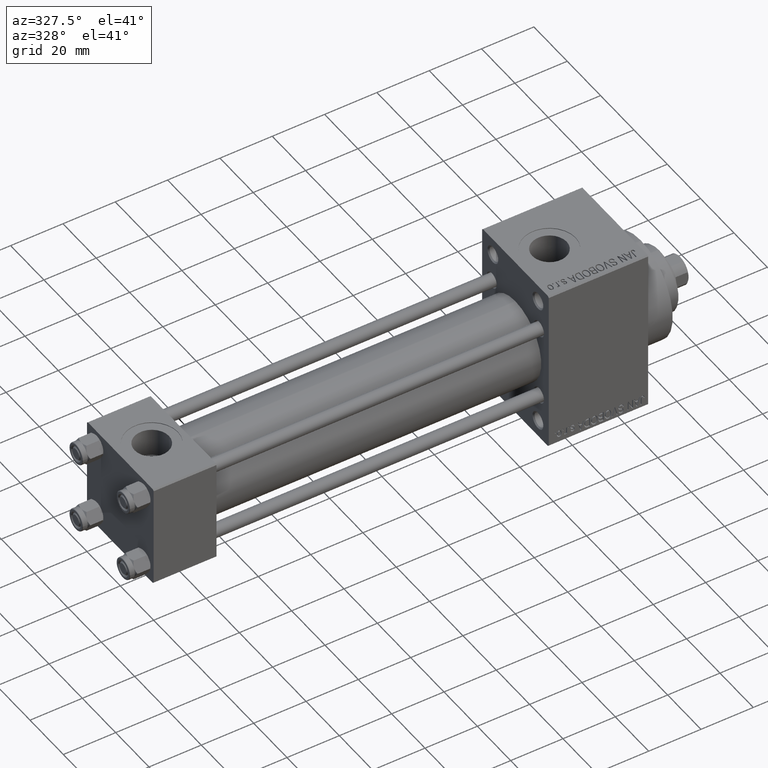
[diagram: clean part render]
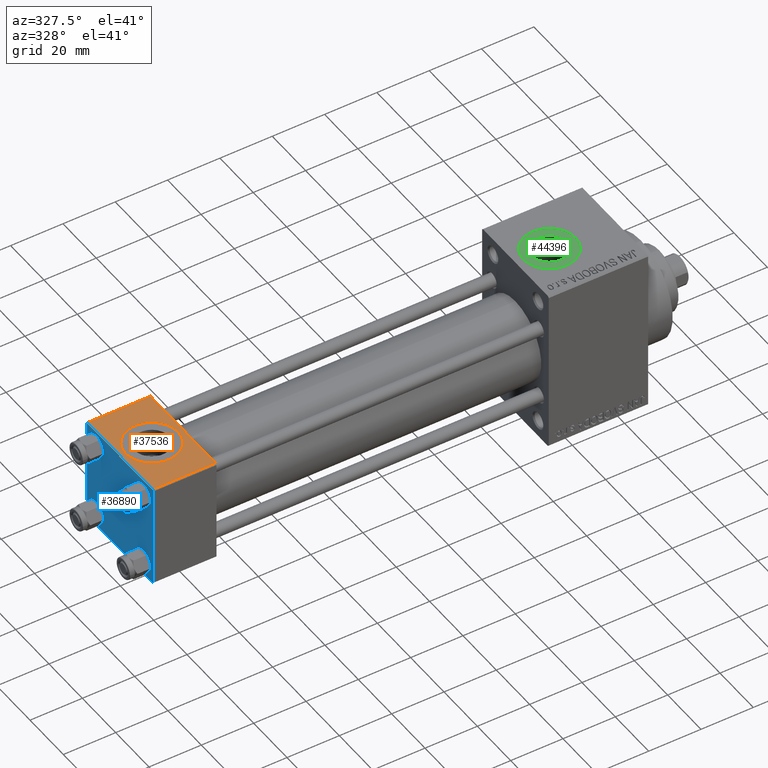
[diagram: same view with three faces highlighted in distinct colors, each labeled with its STEP entity id]
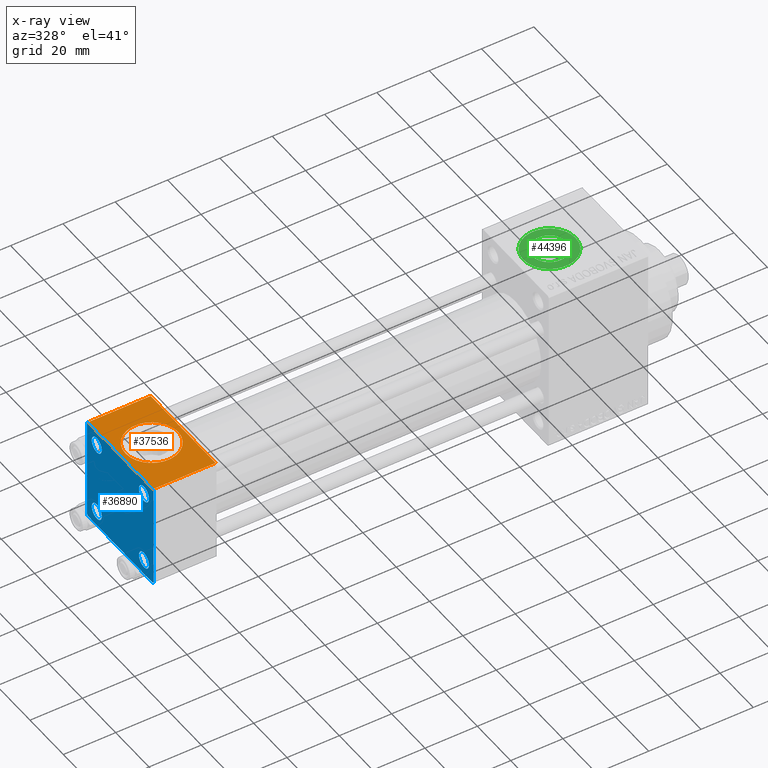
[diagram: x-ray of the same camera — body ghosted, the three highlighted faces saturated]
A machine part, auxiliary view with three faces highlighted in distinct colors.
The next image is the same camera in x-ray (body ghosted, the three faces saturated) — at least one of them is partly hidden behind the body in this view.
Their STEP definitions:

[orange] entity #37536 — the highlighted planar face has unit normal (0, 0, -1).
#848 = PLANE ( 'NONE',  #22096 ) ;
#1594 = DIRECTION ( 'NONE',  ( 1.000000000000000000, 0.000000000000000000, 0.000000000000000000 ) ) ;
#4025 = VECTOR ( 'NONE', #8502, 1000.000000000000000 ) ;
#4645 = EDGE_LOOP ( 'NONE', ( #30213, #18976 ) ) ;
#5561 = CARTESIAN_POINT ( 'NONE',  ( 12.00000000000000000, 1.540743955509788682E-30, 19.99999999999999645 ) ) ;
#6204 = DIRECTION ( 'NONE',  ( 0.000000000000000000, 1.000000000000000000, 2.602085213965210149E-16 ) ) ;
#8268 = DIRECTION ( 'NONE',  ( 0.000000000000000000, 2.602085213965210149E-16, -1.000000000000000000 ) ) ;
#8451 = LINE ( 'NONE', #11924, #19710 ) ;
#8502 = DIRECTION ( 'NONE',  ( 0.000000000000000000, -1.000000000000000000, -2.602085213965210149E-16 ) ) ;
#8698 = DIRECTION ( 'NONE',  ( 1.000000000000000000, 0.000000000000000000, 0.000000000000000000 ) ) ;
#9506 = DIRECTION ( 'NONE',  ( -1.000000000000000000, 0.000000000000000000, 0.000000000000000000 ) ) ;
#11124 = DIRECTION ( 'NONE',  ( 1.000000000000000000, 0.000000000000000000, 0.000000000000000000 ) ) ;
#11924 = CARTESIAN_POINT ( 'NONE',  ( 24.00000000000000000, -19.49999999999999289, 19.99999999999998934 ) ) ;
#12221 = CARTESIAN_POINT ( 'NONE',  ( 0.000000000000000000, 20.00000000000000000, 20.00000000000000000 ) ) ;
#15406 = CIRCLE ( 'NONE', #34464, 9.999999999999998224 ) ;
#16540 = AXIS2_PLACEMENT_3D ( 'NONE', #38200, #48388, #11124 ) ;
#18976 = ORIENTED_EDGE ( 'NONE', *, *, #29473, .F. ) ;
#19127 = VECTOR ( 'NONE', #29719, 1000.000000000000000 ) ;
#19710 = VECTOR ( 'NONE', #8698, 1000.000000000000000 ) ;
#22096 = AXIS2_PLACEMENT_3D ( 'NONE', #39061, #8268, #6204 ) ;
#22767 = CARTESIAN_POINT ( 'NONE',  ( 0.000000000000000000, 19.50000000000000000, 20.00000000000000000 ) ) ;
#22814 = VERTEX_POINT ( 'NONE', #22767 ) ;
#23273 = ORIENTED_EDGE ( 'NONE', *, *, #48019, .F. ) ;
#23686 = ORIENTED_EDGE ( 'NONE', *, *, #46062, .T. ) ;
#24677 = ORIENTED_EDGE ( 'NONE', *, *, #41707, .T. ) ;
#25066 = FACE_BOUND ( 'NONE', #4645, .T. ) ;
#26238 = LINE ( 'NONE', #41390, #19127 ) ;
#26557 = EDGE_LOOP ( 'NONE', ( #23686, #24677, #23273, #35202 ) ) ;
#27179 = VERTEX_POINT ( 'NONE', #32557 ) ;
#27536 = CARTESIAN_POINT ( 'NONE',  ( 24.00000000000000000, -19.49999999999999289, 19.99999999999998934 ) ) ;
#28046 = VERTEX_POINT ( 'NONE', #48188 ) ;
#29473 = EDGE_CURVE ( 'NONE', #28046, #36424, #15406, .T. ) ;
#29719 = DIRECTION ( 'NONE',  ( 0.000000000000000000, -1.000000000000000000, -2.602085213965210149E-16 ) ) ;
#30213 = ORIENTED_EDGE ( 'NONE', *, *, #42751, .F. ) ;
#31873 = LINE ( 'NONE', #32120, #45018 ) ;
#32120 = CARTESIAN_POINT ( 'NONE',  ( 0.000000000000000000, 19.50000000000000000, 20.00000000000000000 ) ) ;
#32557 = CARTESIAN_POINT ( 'NONE',  ( 24.00000000000000000, 19.50000000000000000, 20.00000000000000000 ) ) ;
#34464 = AXIS2_PLACEMENT_3D ( 'NONE', #5561, #43287, #1594 ) ;
#35142 = VERTEX_POINT ( 'NONE', #27536 ) ;
#35202 = ORIENTED_EDGE ( 'NONE', *, *, #39361, .T. ) ;
#36364 = CIRCLE ( 'NONE', #16540, 9.999999999999998224 ) ;
#36424 = VERTEX_POINT ( 'NONE', #43138 ) ;
#37536 = ADVANCED_FACE ( 'NONE', ( #25066, #40215 ), #848, .F. ) ;
#38200 = CARTESIAN_POINT ( 'NONE',  ( 12.00000000000000000, 1.540743955509788682E-30, 19.99999999999999645 ) ) ;
#39061 = CARTESIAN_POINT ( 'NONE',  ( 24.00000000000000000, 20.00000000000000000, 20.00000000000000000 ) ) ;
#39361 = EDGE_CURVE ( 'NONE', #27179, #22814, #31873, .T. ) ;
#40215 = FACE_OUTER_BOUND ( 'NONE', #26557, .T. ) ;
#41390 = CARTESIAN_POINT ( 'NONE',  ( 24.00000000000000000, 20.00000000000000000, 20.00000000000000000 ) ) ;
#41707 = EDGE_CURVE ( 'NONE', #45188, #35142, #8451, .T. ) ;
#42751 = EDGE_CURVE ( 'NONE', #36424, #28046, #36364, .T. ) ;
#43138 = CARTESIAN_POINT ( 'NONE',  ( 22.00000000000000000, 1.540743955509788682E-30, 19.99999999999999645 ) ) ;
#43287 = DIRECTION ( 'NONE',  ( 0.000000000000000000, 0.000000000000000000, 1.000000000000000000 ) ) ;
#45018 = VECTOR ( 'NONE', #9506, 1000.000000000000000 ) ;
#45188 = VERTEX_POINT ( 'NONE', #46732 ) ;
#46062 = EDGE_CURVE ( 'NONE', #22814, #45188, #47228, .T. ) ;
#46732 = CARTESIAN_POINT ( 'NONE',  ( 0.000000000000000000, -19.49999999999999289, 19.99999999999998934 ) ) ;
#47228 = LINE ( 'NONE', #12221, #4025 ) ;
#48019 = EDGE_CURVE ( 'NONE', #27179, #35142, #26238, .T. ) ;
#48188 = CARTESIAN_POINT ( 'NONE',  ( 2.000000000000003553, 1.224646799147354440E-15, 19.99999999999999645 ) ) ;
#48388 = DIRECTION ( 'NONE',  ( 0.000000000000000000, 0.000000000000000000, 1.000000000000000000 ) ) ;

[blue] entity #36890 — the highlighted planar face has unit normal (-1, 0, 0).
#250 = ORIENTED_EDGE ( 'NONE', *, *, #27303, .T. ) ;
#309 = VECTOR ( 'NONE', #34265, 999.9999999999998863 ) ;
#322 = DIRECTION ( 'NONE',  ( 0.000000000000000000, 0.000000000000000000, 1.000000000000000000 ) ) ;
#336 = EDGE_CURVE ( 'NONE', #20200, #17682, #23598, .T. ) ;
#409 = CARTESIAN_POINT ( 'NONE',  ( 0.000000000000000000, -20.00000000000000355, 19.49999999999998224 ) ) ;
#691 = EDGE_LOOP ( 'NONE', ( #10356, #18685 ) ) ;
#1185 = EDGE_LOOP ( 'NONE', ( #26786, #2424 ) ) ;
#1965 = DIRECTION ( 'NONE',  ( 1.000000000000000000, 0.000000000000000000, 0.000000000000000000 ) ) ;
#2131 = LINE ( 'NONE', #43586, #45908 ) ;
#2424 = ORIENTED_EDGE ( 'NONE', *, *, #8043, .T. ) ;
#3034 = EDGE_CURVE ( 'NONE', #11864, #42872, #13341, .T. ) ;
#3051 = DIRECTION ( 'NONE',  ( 0.000000000000000000, 0.000000000000000000, -1.000000000000000000 ) ) ;
#4025 = VECTOR ( 'NONE', #8502, 1000.000000000000000 ) ;
#4692 = FACE_OUTER_BOUND ( 'NONE', #35360, .T. ) ;
#4987 = CARTESIAN_POINT ( 'NONE',  ( 0.000000000000000000, 20.00000000000000000, 19.49999999999999289 ) ) ;
#5481 = VECTOR ( 'NONE', #26413, 1000.000000000000114 ) ;
#5854 = DIRECTION ( 'NONE',  ( 0.000000000000000000, 0.000000000000000000, 1.000000000000000000 ) ) ;
#5886 = ORIENTED_EDGE ( 'NONE', *, *, #41746, .T. ) ;
#6248 = VECTOR ( 'NONE', #7967, 1000.000000000000000 ) ;
#6685 = CARTESIAN_POINT ( 'NONE',  ( 0.000000000000000000, 14.14999999999999858, -14.15000000000000036 ) ) ;
#7031 = AXIS2_PLACEMENT_3D ( 'NONE', #12413, #23852, #31061 ) ;
#7111 = CARTESIAN_POINT ( 'NONE',  ( 0.000000000000000000, 19.50000000000000711, -20.00000000000000711 ) ) ;
#7687 = CIRCLE ( 'NONE', #29886, 2.999999999999983569 ) ;
#7750 = CARTESIAN_POINT ( 'NONE',  ( 0.000000000000000000, -14.14999999999999503, 14.15000000000000391 ) ) ;
#7938 = CARTESIAN_POINT ( 'NONE',  ( -0.000000000000000000, 19.75000000000013500, 19.74999999999986144 ) ) ;
#7967 = DIRECTION ( 'NONE',  ( 0.000000000000000000, -0.7071067811865401342, 0.7071067811865549002 ) ) ;
#8043 = EDGE_CURVE ( 'NONE', #37912, #14534, #23044, .T. ) ;
#8380 = FACE_BOUND ( 'NONE', #40287, .T. ) ;
#8502 = DIRECTION ( 'NONE',  ( 0.000000000000000000, -1.000000000000000000, -2.602085213965210149E-16 ) ) ;
#8963 = LINE ( 'NONE', #36026, #32260 ) ;
#9070 = CARTESIAN_POINT ( 'NONE',  ( 0.000000000000000000, 14.14999999999999858, 17.14999999999998437 ) ) ;
#9144 = CARTESIAN_POINT ( 'NONE',  ( 0.000000000000000000, -14.14999999999999503, 14.15000000000000391 ) ) ;
#9185 = CARTESIAN_POINT ( 'NONE',  ( 0.000000000000000000, -19.50000000000000711, -20.00000000000000000 ) ) ;
#9526 = CIRCLE ( 'NONE', #34925, 2.999999999999983569 ) ;
#9576 = ORIENTED_EDGE ( 'NONE', *, *, #43320, .T. ) ;
#9704 = LINE ( 'NONE', #7938, #309 ) ;
#10356 = ORIENTED_EDGE ( 'NONE', *, *, #32751, .T. ) ;
#11247 = CARTESIAN_POINT ( 'NONE',  ( -0.000000000000000000, -19.74999999999992539, 19.75000000000006395 ) ) ;
#11498 = VECTOR ( 'NONE', #3051, 1000.000000000000000 ) ;
#11603 = PLANE ( 'NONE',  #22026 ) ;
#11854 = FACE_BOUND ( 'NONE', #1185, .T. ) ;
#11864 = VERTEX_POINT ( 'NONE', #46367 ) ;
#12221 = CARTESIAN_POINT ( 'NONE',  ( 0.000000000000000000, 20.00000000000000000, 20.00000000000000000 ) ) ;
#12408 = EDGE_CURVE ( 'NONE', #21149, #45796, #16082, .T. ) ;
#12413 = CARTESIAN_POINT ( 'NONE',  ( 0.000000000000000000, -14.14999999999999503, -14.15000000000000391 ) ) ;
#13263 = CARTESIAN_POINT ( 'NONE',  ( 0.000000000000000000, 14.14999999999999858, 14.15000000000000036 ) ) ;
#13341 = CIRCLE ( 'NONE', #28430, 2.999999999999983569 ) ;
#13725 = EDGE_LOOP ( 'NONE', ( #48706, #41923 ) ) ;
#13856 = VERTEX_POINT ( 'NONE', #9185 ) ;
#14534 = VERTEX_POINT ( 'NONE', #9070 ) ;
#14588 = DIRECTION ( 'NONE',  ( 1.000000000000000000, 0.000000000000000000, 0.000000000000000000 ) ) ;
#15432 = DIRECTION ( 'NONE',  ( 1.000000000000000000, 0.000000000000000000, 0.000000000000000000 ) ) ;
#15576 = DIRECTION ( 'NONE',  ( -0.000000000000000000, 0.000000000000000000, 1.000000000000000000 ) ) ;
#16082 = CIRCLE ( 'NONE', #43042, 3.000000000000004441 ) ;
#17073 = DIRECTION ( 'NONE',  ( 0.000000000000000000, 0.000000000000000000, 1.000000000000000000 ) ) ;
#17141 = DIRECTION ( 'NONE',  ( 0.000000000000000000, 8.673617379884036705E-17, -1.000000000000000000 ) ) ;
#17583 = DIRECTION ( 'NONE',  ( 1.000000000000000000, 0.000000000000000000, 0.000000000000000000 ) ) ;
#17682 = VERTEX_POINT ( 'NONE', #7111 ) ;
#17831 = DIRECTION ( 'NONE',  ( 0.000000000000000000, 0.000000000000000000, 1.000000000000000000 ) ) ;
#17928 = CIRCLE ( 'NONE', #37756, 2.999999999999983569 ) ;
#18685 = ORIENTED_EDGE ( 'NONE', *, *, #3034, .T. ) ;
#19804 = CARTESIAN_POINT ( 'NONE',  ( 0.000000000000000000, 0.000000000000000000, 0.000000000000000000 ) ) ;
#20200 = VERTEX_POINT ( 'NONE', #21627 ) ;
#20717 = ORIENTED_EDGE ( 'NONE', *, *, #46062, .F. ) ;
#20853 = DIRECTION ( 'NONE',  ( -0.000000000000000000, -0.7071067811865524577, -0.7071067811865426878 ) ) ;
#21149 = VERTEX_POINT ( 'NONE', #32633 ) ;
#21602 = ORIENTED_EDGE ( 'NONE', *, *, #34122, .F. ) ;
#21627 = CARTESIAN_POINT ( 'NONE',  ( 0.000000000000000000, 20.00000000000000000, -19.50000000000002132 ) ) ;
#22026 = AXIS2_PLACEMENT_3D ( 'NONE', #19804, #41677, #15576 ) ;
#22306 = EDGE_CURVE ( 'NONE', #36012, #20200, #25863, .T. ) ;
#22767 = CARTESIAN_POINT ( 'NONE',  ( 0.000000000000000000, 19.50000000000000000, 20.00000000000000000 ) ) ;
#22814 = VERTEX_POINT ( 'NONE', #22767 ) ;
#22879 = LINE ( 'NONE', #25873, #6248 ) ;
#22986 = CARTESIAN_POINT ( 'NONE',  ( 0.000000000000000000, -14.14999999999999503, -17.15000000000000924 ) ) ;
#23044 = CIRCLE ( 'NONE', #35733, 2.999999999999983569 ) ;
#23598 = LINE ( 'NONE', #46927, #26064 ) ;
#23699 = CARTESIAN_POINT ( 'NONE',  ( 0.000000000000000000, 14.14999999999999858, 14.15000000000000036 ) ) ;
#23852 = DIRECTION ( 'NONE',  ( 1.000000000000000000, 0.000000000000000000, 0.000000000000000000 ) ) ;
#23873 = EDGE_CURVE ( 'NONE', #41114, #41036, #32962, .T. ) ;
#24710 = DIRECTION ( 'NONE',  ( 1.000000000000000000, 0.000000000000000000, 0.000000000000000000 ) ) ;
#25617 = CARTESIAN_POINT ( 'NONE',  ( 0.000000000000000000, 20.00000000000000000, 20.00000000000000000 ) ) ;
#25761 = DIRECTION ( 'NONE',  ( 1.000000000000000000, 0.000000000000000000, 0.000000000000000000 ) ) ;
#25863 = LINE ( 'NONE', #25617, #11498 ) ;
#25873 = CARTESIAN_POINT ( 'NONE',  ( 0.000000000000000000, -19.75000000000020961, -19.74999999999979394 ) ) ;
#26064 = VECTOR ( 'NONE', #20853, 1000.000000000000000 ) ;
#26413 = DIRECTION ( 'NONE',  ( -0.000000000000000000, 0.7071067811865500152, 0.7071067811865451302 ) ) ;
#26480 = DIRECTION ( 'NONE',  ( 1.000000000000000000, 0.000000000000000000, 0.000000000000000000 ) ) ;
#26786 = ORIENTED_EDGE ( 'NONE', *, *, #46726, .T. ) ;
#27303 = EDGE_CURVE ( 'NONE', #22814, #36012, #9704, .T. ) ;
#28430 = AXIS2_PLACEMENT_3D ( 'NONE', #6685, #17583, #17831 ) ;
#29009 = DIRECTION ( 'NONE',  ( 0.000000000000000000, 0.000000000000000000, 1.000000000000000000 ) ) ;
#29886 = AXIS2_PLACEMENT_3D ( 'NONE', #7750, #15432, #322 ) ;
#29956 = CARTESIAN_POINT ( 'NONE',  ( 0.000000000000000000, 14.14999999999999858, -14.15000000000000036 ) ) ;
#30631 = LINE ( 'NONE', #11247, #5481 ) ;
#31061 = DIRECTION ( 'NONE',  ( 0.000000000000000000, 0.000000000000000000, 1.000000000000000000 ) ) ;
#31737 = CARTESIAN_POINT ( 'NONE',  ( 0.000000000000000000, 14.14999999999999858, -11.15000000000001812 ) ) ;
#32260 = VECTOR ( 'NONE', #17141, 1000.000000000000000 ) ;
#32633 = CARTESIAN_POINT ( 'NONE',  ( 0.000000000000000000, -14.14999999999999503, -11.15000000000000036 ) ) ;
#32751 = EDGE_CURVE ( 'NONE', #42872, #11864, #17928, .T. ) ;
#32962 = CIRCLE ( 'NONE', #40123, 2.999999999999983569 ) ;
#33982 = CARTESIAN_POINT ( 'NONE',  ( 0.000000000000000000, -14.14999999999999503, 17.14999999999998792 ) ) ;
#34122 = EDGE_CURVE ( 'NONE', #45805, #34677, #8963, .T. ) ;
#34265 = DIRECTION ( 'NONE',  ( 0.000000000000000000, 0.7071067811865425767, -0.7071067811865525687 ) ) ;
#34333 = ORIENTED_EDGE ( 'NONE', *, *, #38497, .T. ) ;
#34677 = VERTEX_POINT ( 'NONE', #42572 ) ;
#34925 = AXIS2_PLACEMENT_3D ( 'NONE', #13263, #24710, #5854 ) ;
#34976 = EDGE_CURVE ( 'NONE', #41036, #41114, #7687, .T. ) ;
#35360 = EDGE_LOOP ( 'NONE', ( #44384, #46829, #9576, #34333, #21602, #47101, #20717, #250 ) ) ;
#35733 = AXIS2_PLACEMENT_3D ( 'NONE', #23699, #25761, #40916 ) ;
#36012 = VERTEX_POINT ( 'NONE', #4987 ) ;
#36026 = CARTESIAN_POINT ( 'NONE',  ( 0.000000000000000000, -20.00000000000000355, 19.99999999999998934 ) ) ;
#36731 = CARTESIAN_POINT ( 'NONE',  ( 0.000000000000000000, -14.14999999999999503, 11.15000000000002345 ) ) ;
#36890 = ADVANCED_FACE ( 'NONE', ( #38444, #8380, #49105, #11854, #4692 ), #11603, .T. ) ;
#37756 = AXIS2_PLACEMENT_3D ( 'NONE', #29956, #26480, #37909 ) ;
#37909 = DIRECTION ( 'NONE',  ( 0.000000000000000000, 0.000000000000000000, 1.000000000000000000 ) ) ;
#37912 = VERTEX_POINT ( 'NONE', #43154 ) ;
#38124 = ORIENTED_EDGE ( 'NONE', *, *, #12408, .T. ) ;
#38444 = FACE_BOUND ( 'NONE', #13725, .T. ) ;
#38497 = EDGE_CURVE ( 'NONE', #13856, #34677, #22879, .T. ) ;
#40123 = AXIS2_PLACEMENT_3D ( 'NONE', #9144, #1965, #17073 ) ;
#40287 = EDGE_LOOP ( 'NONE', ( #38124, #5886 ) ) ;
#40916 = DIRECTION ( 'NONE',  ( 0.000000000000000000, 0.000000000000000000, 1.000000000000000000 ) ) ;
#41036 = VERTEX_POINT ( 'NONE', #36731 ) ;
#41114 = VERTEX_POINT ( 'NONE', #33982 ) ;
#41677 = DIRECTION ( 'NONE',  ( -1.000000000000000000, 0.000000000000000000, -0.000000000000000000 ) ) ;
#41746 = EDGE_CURVE ( 'NONE', #45796, #21149, #45086, .T. ) ;
#41923 = ORIENTED_EDGE ( 'NONE', *, *, #34976, .T. ) ;
#42572 = CARTESIAN_POINT ( 'NONE',  ( 0.000000000000000000, -20.00000000000000000, -19.49999999999999645 ) ) ;
#42602 = EDGE_CURVE ( 'NONE', #45805, #45188, #30631, .T. ) ;
#42872 = VERTEX_POINT ( 'NONE', #31737 ) ;
#43042 = AXIS2_PLACEMENT_3D ( 'NONE', #48616, #14588, #29009 ) ;
#43154 = CARTESIAN_POINT ( 'NONE',  ( 0.000000000000000000, 14.14999999999999858, 11.15000000000001990 ) ) ;
#43320 = EDGE_CURVE ( 'NONE', #17682, #13856, #2131, .T. ) ;
#43586 = CARTESIAN_POINT ( 'NONE',  ( 0.000000000000000000, 20.00000000000000000, -20.00000000000000711 ) ) ;
#44384 = ORIENTED_EDGE ( 'NONE', *, *, #22306, .T. ) ;
#45086 = CIRCLE ( 'NONE', #7031, 3.000000000000004441 ) ;
#45188 = VERTEX_POINT ( 'NONE', #46732 ) ;
#45796 = VERTEX_POINT ( 'NONE', #22986 ) ;
#45805 = VERTEX_POINT ( 'NONE', #409 ) ;
#45908 = VECTOR ( 'NONE', #47303, 1000.000000000000000 ) ;
#46062 = EDGE_CURVE ( 'NONE', #22814, #45188, #47228, .T. ) ;
#46367 = CARTESIAN_POINT ( 'NONE',  ( 0.000000000000000000, 14.14999999999999858, -17.14999999999998437 ) ) ;
#46726 = EDGE_CURVE ( 'NONE', #14534, #37912, #9526, .T. ) ;
#46732 = CARTESIAN_POINT ( 'NONE',  ( 0.000000000000000000, -19.49999999999999289, 19.99999999999998934 ) ) ;
#46829 = ORIENTED_EDGE ( 'NONE', *, *, #336, .T. ) ;
#46927 = CARTESIAN_POINT ( 'NONE',  ( -0.000000000000000000, 19.74999999999986855, -19.75000000000014211 ) ) ;
#47101 = ORIENTED_EDGE ( 'NONE', *, *, #42602, .T. ) ;
#47228 = LINE ( 'NONE', #12221, #4025 ) ;
#47303 = DIRECTION ( 'NONE',  ( 0.000000000000000000, -1.000000000000000000, 1.734723475976807094E-16 ) ) ;
#48616 = CARTESIAN_POINT ( 'NONE',  ( 0.000000000000000000, -14.14999999999999503, -14.15000000000000391 ) ) ;
#48706 = ORIENTED_EDGE ( 'NONE', *, *, #23873, .T. ) ;
#49105 = FACE_BOUND ( 'NONE', #691, .T. ) ;

[green] entity #44396 — the highlighted planar face has unit normal (0, 0, 1).
#127 = CARTESIAN_POINT ( 'NONE',  ( 164.0000000000000284, -5.551115123125782702E-15, 31.80000000000000071 ) ) ;
#1104 = ORIENTED_EDGE ( 'NONE', *, *, #21737, .T. ) ;
#1107 = FACE_BOUND ( 'NONE', #46619, .T. ) ;
#2592 = ORIENTED_EDGE ( 'NONE', *, *, #36079, .T. ) ;
#3959 = AXIS2_PLACEMENT_3D ( 'NONE', #46038, #35591, #24901 ) ;
#4105 = FACE_OUTER_BOUND ( 'NONE', #17794, .T. ) ;
#4251 = CARTESIAN_POINT ( 'NONE',  ( 164.0000000000000284, -5.551115123125782702E-15, 31.80000000000000071 ) ) ;
#6210 = DIRECTION ( 'NONE',  ( -0.000000000000000000, -0.000000000000000000, -1.000000000000000000 ) ) ;
#8409 = VERTEX_POINT ( 'NONE', #13898 ) ;
#10406 = DIRECTION ( 'NONE',  ( 1.000000000000000000, 0.000000000000000000, 0.000000000000000000 ) ) ;
#10685 = AXIS2_PLACEMENT_3D ( 'NONE', #40151, #40394, #35694 ) ;
#11509 = CARTESIAN_POINT ( 'NONE',  ( 154.0000000000000284, -4.326468323978428854E-15, 31.80000000000000071 ) ) ;
#13831 = CIRCLE ( 'NONE', #10685, 10.00000000000000888 ) ;
#13898 = CARTESIAN_POINT ( 'NONE',  ( 157.4200000000000443, -5.551115123125782702E-15, 31.80000000000000071 ) ) ;
#14598 = VERTEX_POINT ( 'NONE', #31476 ) ;
#15381 = DIRECTION ( 'NONE',  ( -0.000000000000000000, -0.000000000000000000, -1.000000000000000000 ) ) ;
#17794 = EDGE_LOOP ( 'NONE', ( #1104, #28771 ) ) ;
#18344 = CARTESIAN_POINT ( 'NONE',  ( 164.0000000000000284, -5.551115123125782702E-15, 31.80000000000000071 ) ) ;
#19226 = DIRECTION ( 'NONE',  ( 1.000000000000000000, 0.000000000000000000, 0.000000000000000000 ) ) ;
#21737 = EDGE_CURVE ( 'NONE', #43781, #44270, #13831, .T. ) ;
#23853 = CIRCLE ( 'NONE', #37331, 6.580000000000002736 ) ;
#24901 = DIRECTION ( 'NONE',  ( 1.000000000000000000, 0.000000000000000000, -0.000000000000000000 ) ) ;
#25519 = ORIENTED_EDGE ( 'NONE', *, *, #47523, .T. ) ;
#25775 = AXIS2_PLACEMENT_3D ( 'NONE', #127, #26918, #19226 ) ;
#26918 = DIRECTION ( 'NONE',  ( 0.000000000000000000, 0.000000000000000000, 1.000000000000000000 ) ) ;
#27566 = CARTESIAN_POINT ( 'NONE',  ( 174.0000000000000568, -5.551115123125782702E-15, 31.80000000000000071 ) ) ;
#28771 = ORIENTED_EDGE ( 'NONE', *, *, #30302, .T. ) ;
#30302 = EDGE_CURVE ( 'NONE', #44270, #43781, #47186, .T. ) ;
#30648 = PLANE ( 'NONE',  #3959 ) ;
#31476 = CARTESIAN_POINT ( 'NONE',  ( 170.5800000000000409, -4.745297529286821294E-15, 31.80000000000000071 ) ) ;
#34518 = DIRECTION ( 'NONE',  ( 1.000000000000000000, 0.000000000000000000, 0.000000000000000000 ) ) ;
#35591 = DIRECTION ( 'NONE',  ( 0.000000000000000000, 0.000000000000000000, 1.000000000000000000 ) ) ;
#35694 = DIRECTION ( 'NONE',  ( 1.000000000000000000, 0.000000000000000000, 0.000000000000000000 ) ) ;
#36079 = EDGE_CURVE ( 'NONE', #14598, #8409, #48166, .T. ) ;
#37331 = AXIS2_PLACEMENT_3D ( 'NONE', #18344, #6210, #10406 ) ;
#40151 = CARTESIAN_POINT ( 'NONE',  ( 164.0000000000000284, -5.551115123125782702E-15, 31.80000000000000071 ) ) ;
#40394 = DIRECTION ( 'NONE',  ( 0.000000000000000000, 0.000000000000000000, 1.000000000000000000 ) ) ;
#43781 = VERTEX_POINT ( 'NONE', #27566 ) ;
#44270 = VERTEX_POINT ( 'NONE', #11509 ) ;
#44396 = ADVANCED_FACE ( 'NONE', ( #1107, #4105 ), #30648, .T. ) ;
#45803 = AXIS2_PLACEMENT_3D ( 'NONE', #4251, #15381, #34518 ) ;
#46038 = CARTESIAN_POINT ( 'NONE',  ( 164.0000000000000284, -5.551115123125782702E-15, 31.80000000000000071 ) ) ;
#46619 = EDGE_LOOP ( 'NONE', ( #25519, #2592 ) ) ;
#47186 = CIRCLE ( 'NONE', #25775, 10.00000000000000888 ) ;
#47523 = EDGE_CURVE ( 'NONE', #8409, #14598, #23853, .T. ) ;
#48166 = CIRCLE ( 'NONE', #45803, 6.580000000000002736 ) ;